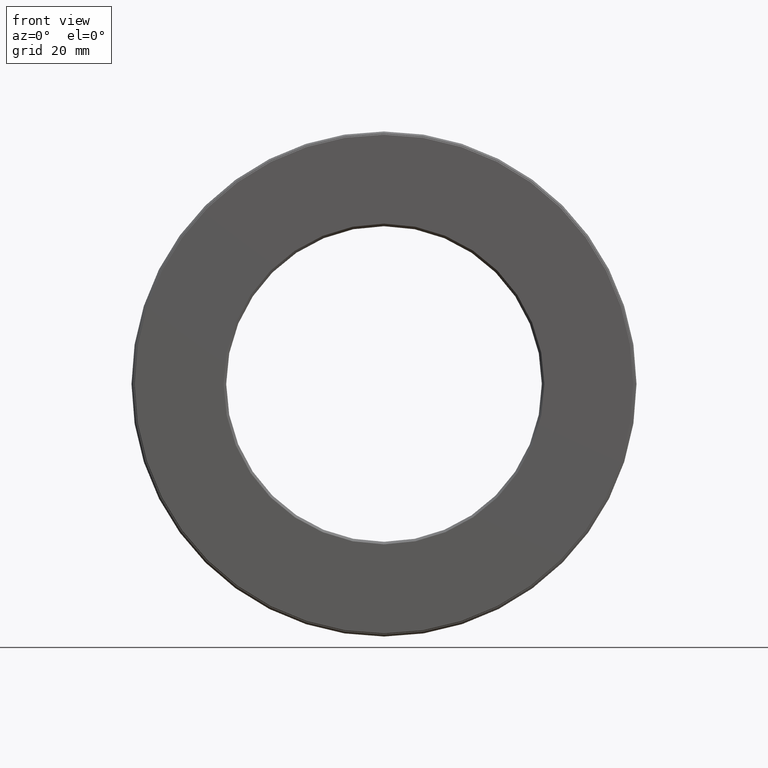
[diagram: clean part render]
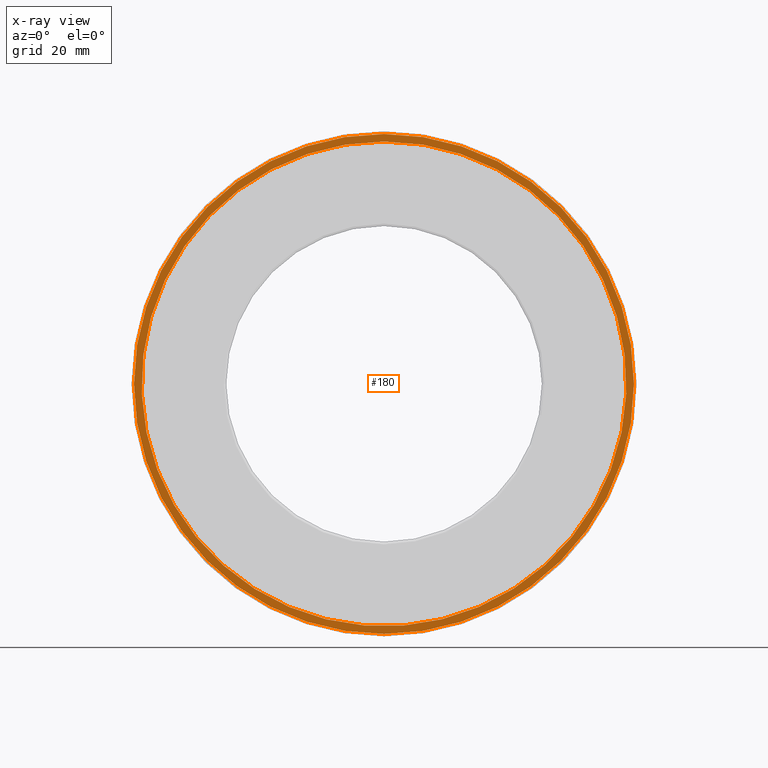
[diagram: x-ray — body ghosted, one internal face saturated and labeled with its STEP entity id]
A machine part, front view, then the same camera in x-ray: the body is ghosted and one INTERNAL B-rep face — a face not visible from any outside direction — is saturated and labeled: STEP entity #180.
In plain terms, the highlighted planar face has unit normal (-0, 1, 0).
Its self-contained STEP definition (entity closure, byte-faithful):
#24 = DIRECTION ( 'NONE',  ( -0.0000000000000000000, 1.000000000000000000, 0.0000000000000000000 ) ) ;
#62 = ORIENTED_EDGE ( 'NONE', *, *, #229, .F. ) ;
#103 = CIRCLE ( 'NONE', #505, 1.919999999999999900 ) ;
#122 = DIRECTION ( 'NONE',  ( 0.0000000000000000000, 0.0000000000000000000, 1.000000000000000000 ) ) ;
#152 = CARTESIAN_POINT ( 'NONE',  ( 0.0000000000000000000, 1.214999999999999600, 0.0000000000000000000 ) ) ;
#162 = CARTESIAN_POINT ( 'NONE',  ( 0.0000000000000000000, 1.214999999999999600, 0.0000000000000000000 ) ) ;
#180 = ADVANCED_FACE ( 'NONE', ( #193, #448 ), #202, .F. ) ;
#187 = VERTEX_POINT ( 'NONE', #456 ) ;
#193 = FACE_OUTER_BOUND ( 'NONE', #554, .T. ) ;
#202 = PLANE ( 'NONE',  #324 ) ;
#204 = VERTEX_POINT ( 'NONE', #590 ) ;
#229 = EDGE_CURVE ( 'NONE', #187, #187, #412, .T. ) ;
#267 = AXIS2_PLACEMENT_3D ( 'NONE', #152, #580, #303 ) ;
#303 = DIRECTION ( 'NONE',  ( 0.0000000000000000000, 0.0000000000000000000, 1.000000000000000000 ) ) ;
#307 = EDGE_LOOP ( 'NONE', ( #363 ) ) ;
#324 = AXIS2_PLACEMENT_3D ( 'NONE', #389, #24, #122 ) ;
#341 = EDGE_CURVE ( 'NONE', #204, #204, #103, .T. ) ;
#363 = ORIENTED_EDGE ( 'NONE', *, *, #341, .T. ) ;
#389 = CARTESIAN_POINT ( 'NONE',  ( 0.0000000000000000000, 1.214999999999999600, 0.0000000000000000000 ) ) ;
#397 = DIRECTION ( 'NONE',  ( -0.0000000000000000000, 1.000000000000000000, -0.0000000000000000000 ) ) ;
#412 = CIRCLE ( 'NONE', #267, 1.980000000000000000 ) ;
#448 = FACE_BOUND ( 'NONE', #307, .T. ) ;
#456 = CARTESIAN_POINT ( 'NONE',  ( 0.0000000000000000000, 1.214999999999999600, 1.980000000000000000 ) ) ;
#505 = AXIS2_PLACEMENT_3D ( 'NONE', #162, #397, #581 ) ;
#554 = EDGE_LOOP ( 'NONE', ( #62 ) ) ;
#580 = DIRECTION ( 'NONE',  ( -0.0000000000000000000, 1.000000000000000000, -0.0000000000000000000 ) ) ;
#581 = DIRECTION ( 'NONE',  ( 0.0000000000000000000, 0.0000000000000000000, 1.000000000000000000 ) ) ;
#590 = CARTESIAN_POINT ( 'NONE',  ( 0.0000000000000000000, 1.214999999999999600, 1.919999999999999900 ) ) ;